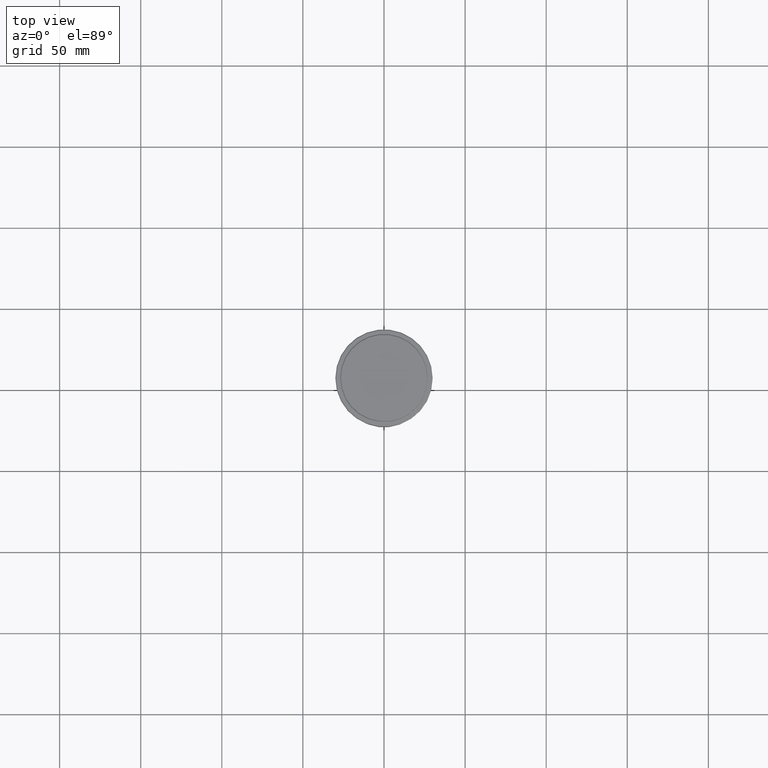
[diagram: clean part render]
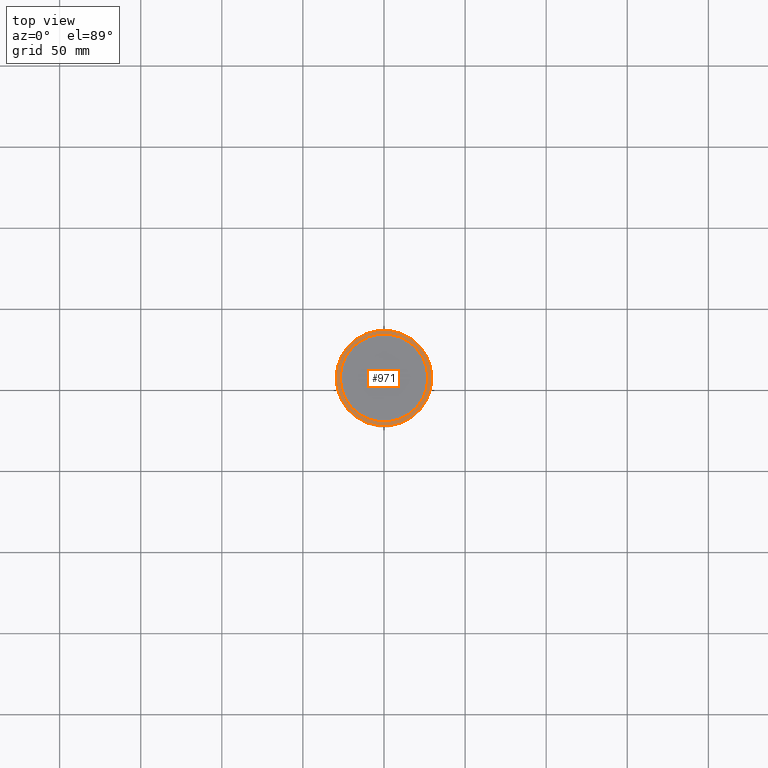
[diagram: same view with one face highlighted and labeled with its STEP entity id]
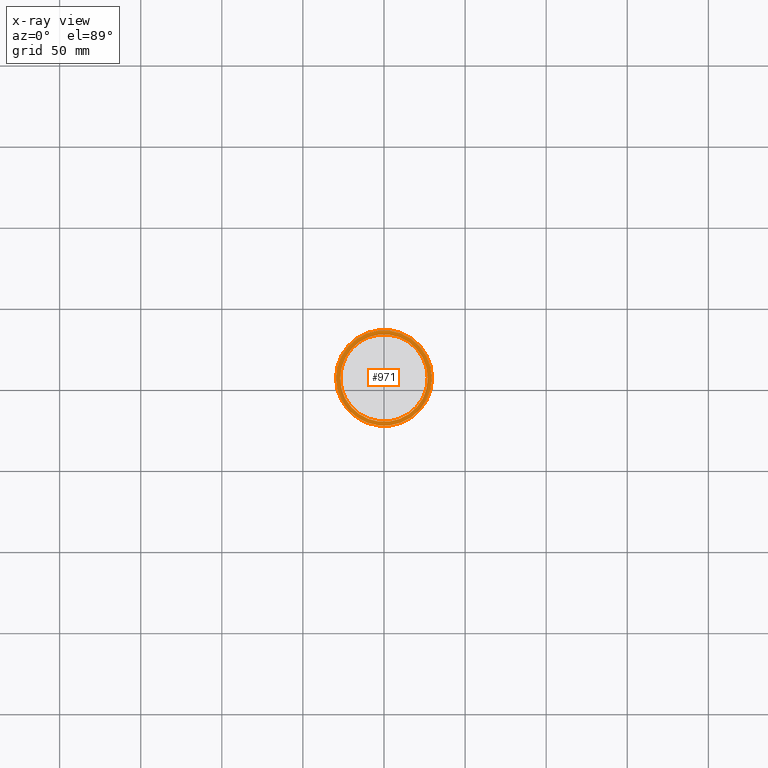
[diagram: x-ray of the same camera — body ghosted, the highlighted face saturated]
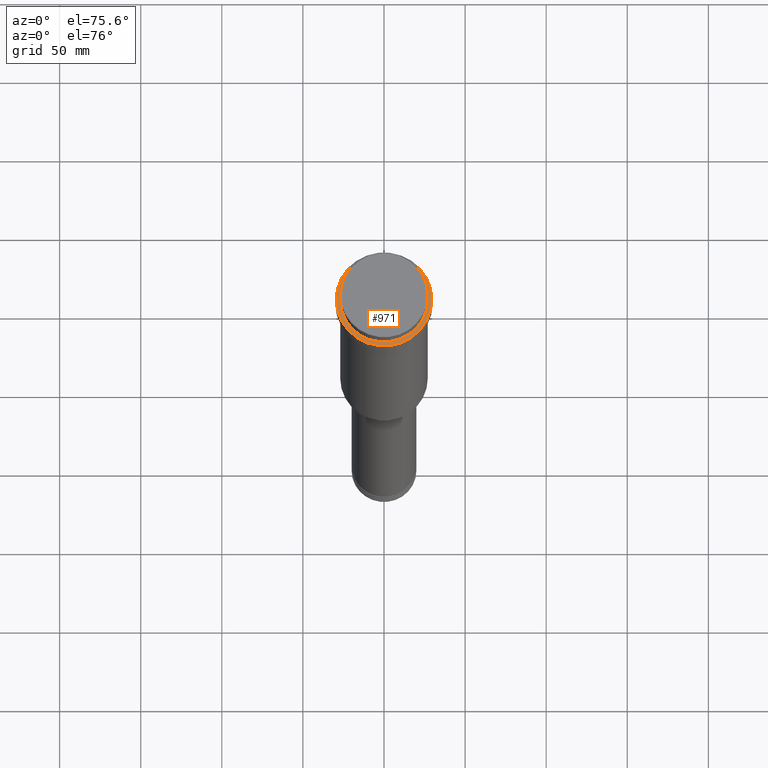
[diagram: same view with one face highlighted and labeled with its STEP entity id]
A machine part, top view. The second image highlights one B-rep face of the part: STEP entity #971.
The next image is the same camera in x-ray: the body ghosted, the highlighted face saturated — about 0% of this face is hidden behind the body in this view.
A second angle (auxiliary view) of the same face is appended — the face is thin or edge-on in the first view.
In plain terms, the highlighted planar face has unit normal (0, -0, 1).
Its self-contained STEP definition (entity closure, byte-faithful):
#59 = EDGE_CURVE ( 'NONE', #718, #653, #956, .T. ) ;
#63 = VERTEX_POINT ( 'NONE', #1048 ) ;
#93 = ORIENTED_EDGE ( 'NONE', *, *, #59, .T. ) ;
#152 = CARTESIAN_POINT ( 'NONE',  ( 26.99999999999999289, 0.000000000000000000, -12.00000000000000178 ) ) ;
#161 = EDGE_CURVE ( 'NONE', #201, #63, #263, .T. ) ;
#163 = DIRECTION ( 'NONE',  ( 1.000000000000000000, 0.000000000000000000, 0.000000000000000000 ) ) ;
#172 = DIRECTION ( 'NONE',  ( 1.000000000000000000, 0.000000000000000000, 0.000000000000000000 ) ) ;
#178 = CARTESIAN_POINT ( 'NONE',  ( 0.000000000000000000, 0.000000000000000000, -12.00000000000000178 ) ) ;
#201 = VERTEX_POINT ( 'NONE', #1390 ) ;
#203 = FACE_OUTER_BOUND ( 'NONE', #1198, .T. ) ;
#212 = DIRECTION ( 'NONE',  ( 1.000000000000000000, 0.000000000000000000, 0.000000000000000000 ) ) ;
#218 = FACE_BOUND ( 'NONE', #571, .T. ) ;
#236 = PLANE ( 'NONE',  #1397 ) ;
#263 = CIRCLE ( 'NONE', #660, 29.50000000000002487 ) ;
#279 = CARTESIAN_POINT ( 'NONE',  ( 0.000000000000000000, 0.000000000000000000, -12.00000000000000178 ) ) ;
#311 = DIRECTION ( 'NONE',  ( 0.000000000000000000, -0.000000000000000000, 1.000000000000000000 ) ) ;
#314 = AXIS2_PLACEMENT_3D ( 'NONE', #279, #698, #163 ) ;
#362 = EDGE_CURVE ( 'NONE', #653, #718, #1349, .T. ) ;
#377 = CARTESIAN_POINT ( 'NONE',  ( -26.99999999999999289, 3.306546357697852944E-15, -12.00000000000000178 ) ) ;
#440 = DIRECTION ( 'NONE',  ( 1.000000000000000000, 0.000000000000000000, 0.000000000000000000 ) ) ;
#463 = DIRECTION ( 'NONE',  ( -0.000000000000000000, -0.000000000000000000, 1.000000000000000000 ) ) ;
#571 = EDGE_LOOP ( 'NONE', ( #1342, #93 ) ) ;
#610 = CIRCLE ( 'NONE', #1128, 29.50000000000002487 ) ;
#622 = ORIENTED_EDGE ( 'NONE', *, *, #739, .T. ) ;
#653 = VERTEX_POINT ( 'NONE', #152 ) ;
#660 = AXIS2_PLACEMENT_3D ( 'NONE', #1401, #1410, #1279 ) ;
#698 = DIRECTION ( 'NONE',  ( 0.000000000000000000, 0.000000000000000000, -1.000000000000000000 ) ) ;
#718 = VERTEX_POINT ( 'NONE', #377 ) ;
#739 = EDGE_CURVE ( 'NONE', #63, #201, #610, .T. ) ;
#956 = CIRCLE ( 'NONE', #1131, 26.99999999999999289 ) ;
#971 = ADVANCED_FACE ( 'NONE', ( #203, #218 ), #236, .T. ) ;
#1039 = ORIENTED_EDGE ( 'NONE', *, *, #161, .T. ) ;
#1048 = CARTESIAN_POINT ( 'NONE',  ( -29.50000000000002487, 0.000000000000000000, -12.00000000000000178 ) ) ;
#1128 = AXIS2_PLACEMENT_3D ( 'NONE', #1344, #463, #212 ) ;
#1131 = AXIS2_PLACEMENT_3D ( 'NONE', #178, #1138, #172 ) ;
#1138 = DIRECTION ( 'NONE',  ( 0.000000000000000000, 0.000000000000000000, -1.000000000000000000 ) ) ;
#1198 = EDGE_LOOP ( 'NONE', ( #622, #1039 ) ) ;
#1279 = DIRECTION ( 'NONE',  ( 1.000000000000000000, 0.000000000000000000, 0.000000000000000000 ) ) ;
#1342 = ORIENTED_EDGE ( 'NONE', *, *, #362, .T. ) ;
#1344 = CARTESIAN_POINT ( 'NONE',  ( 0.000000000000000000, 0.000000000000000000, -12.00000000000000178 ) ) ;
#1349 = CIRCLE ( 'NONE', #314, 26.99999999999999289 ) ;
#1390 = CARTESIAN_POINT ( 'NONE',  ( 29.50000000000002487, 3.643324227463376968E-15, -12.00000000000000178 ) ) ;
#1397 = AXIS2_PLACEMENT_3D ( 'NONE', #1416, #311, #440 ) ;
#1401 = CARTESIAN_POINT ( 'NONE',  ( 0.000000000000000000, 0.000000000000000000, -12.00000000000000178 ) ) ;
#1410 = DIRECTION ( 'NONE',  ( -0.000000000000000000, -0.000000000000000000, 1.000000000000000000 ) ) ;
#1416 = CARTESIAN_POINT ( 'NONE',  ( 0.000000000000000000, 26.49999999999999645, -12.00000000000000178 ) ) ;